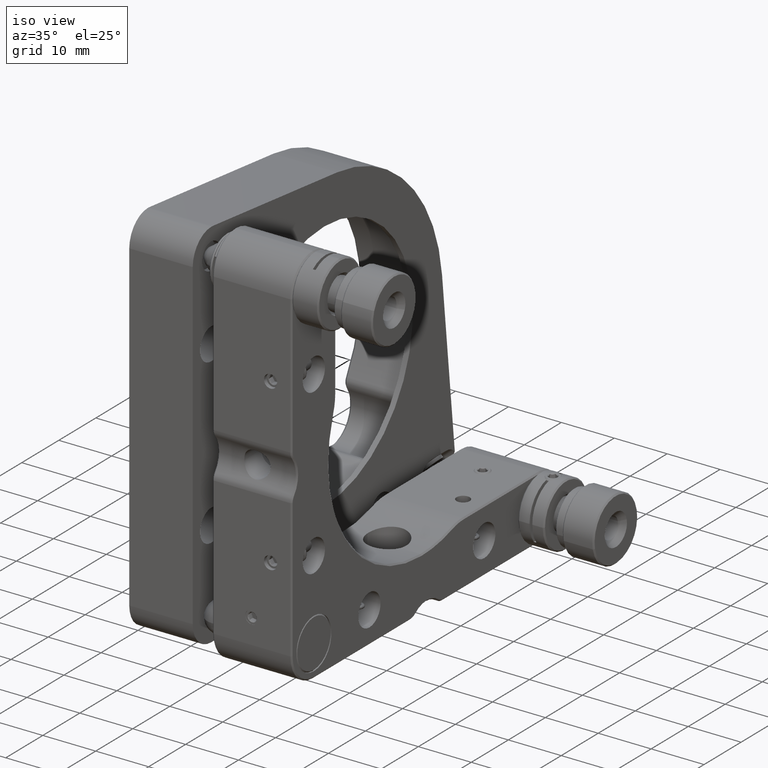
[diagram: clean part render]
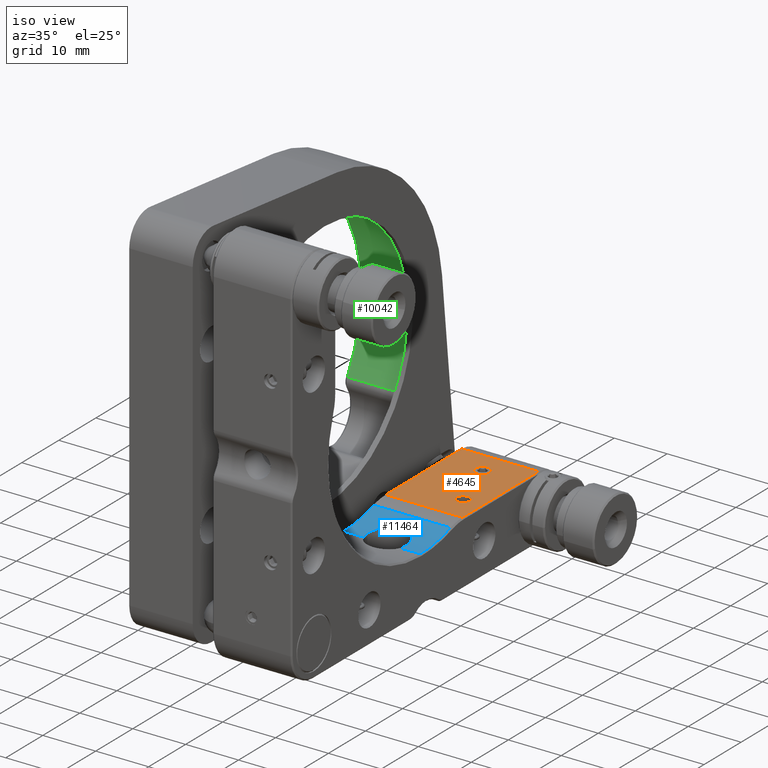
[diagram: same view with three faces highlighted in distinct colors, each labeled with its STEP entity id]
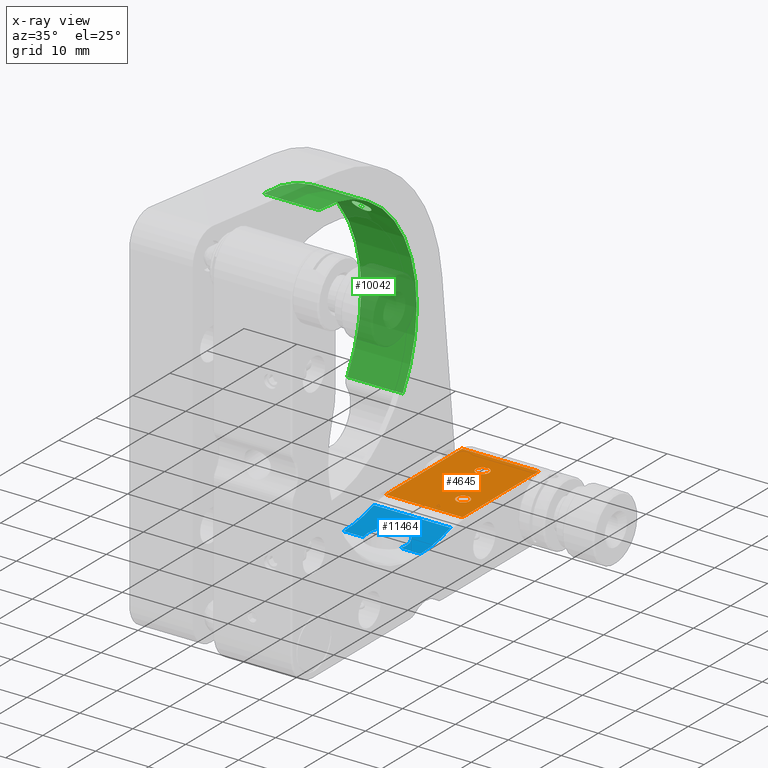
[diagram: x-ray of the same camera — body ghosted, the three highlighted faces saturated]
A machine part, iso view with three faces highlighted in distinct colors.
The next image is the same camera in x-ray (body ghosted, the three faces saturated) — at least one of them is partly hidden behind the body in this view.
Their STEP definitions:

[orange] entity #4645 — the highlighted planar face has unit normal (0, 0, -1).
#412 = CARTESIAN_POINT ( 'NONE',  ( 7.249999999999985789, 30.49999999999999289, -24.50000000000000000 ) ) ;
#606 = EDGE_CURVE ( 'NONE', #11879, #11131, #8048, .T. ) ;
#732 = CARTESIAN_POINT ( 'NONE',  ( -7.249999999999985789, 30.49999999999999289, -24.50000000000000000 ) ) ;
#930 = CARTESIAN_POINT ( 'NONE',  ( -7.500000000000000000, 9.974972527439348369, -24.50000000000000711 ) ) ;
#1131 = CARTESIAN_POINT ( 'NONE',  ( 7.249999999999985789, 30.49999999999999289, -24.50000000000000000 ) ) ;
#1213 = CARTESIAN_POINT ( 'NONE',  ( 0.0000000000000000000, 25.74999999999999645, -24.50000000000001066 ) ) ;
#1419 = EDGE_CURVE ( 'NONE', #14756, #14816, #10387, .T. ) ;
#1962 = FACE_BOUND ( 'NONE', #14344, .T. ) ;
#2209 = DIRECTION ( 'NONE',  ( 1.000000000000000000, -0.0000000000000000000, 0.0000000000000000000 ) ) ;
#2407 = AXIS2_PLACEMENT_3D ( 'NONE', #17346, #5649, #17639 ) ;
#2492 = ORIENTED_EDGE ( 'NONE', *, *, #1419, .T. ) ;
#2556 = ORIENTED_EDGE ( 'NONE', *, *, #16150, .T. ) ;
#2637 = CARTESIAN_POINT ( 'NONE',  ( 1.249999999999988898, 25.74999999999999645, -24.50000000000001066 ) ) ;
#3289 = CARTESIAN_POINT ( 'NONE',  ( 3.499999999999999556, 15.49999999999999112, -24.50000000000000711 ) ) ;
#3484 = ORIENTED_EDGE ( 'NONE', *, *, #10596, .T. ) ;
#3590 = LINE ( 'NONE', #930, #10174 ) ;
#3919 = EDGE_LOOP ( 'NONE', ( #3484, #8219, #2556, #10214 ) ) ;
#4506 = CARTESIAN_POINT ( 'NONE',  ( -7.500000000000000000, 30.49999999999999289, -24.50000000000000000 ) ) ;
#4535 = FACE_BOUND ( 'NONE', #7810, .T. ) ;
#4645 = ADVANCED_FACE ( 'NONE', ( #1962, #4535, #13873 ), #4925, .F. ) ;
#4803 = DIRECTION ( 'NONE',  ( 0.0000000000000000000, 2.448429006113450357E-16, -1.000000000000000000 ) ) ;
#4925 = PLANE ( 'NONE',  #9288 ) ;
#4933 = AXIS2_PLACEMENT_3D ( 'NONE', #12931, #5655, #14703 ) ;
#5376 = EDGE_CURVE ( 'NONE', #10541, #11615, #14725, .T. ) ;
#5377 = DIRECTION ( 'NONE',  ( -0.0000000000000000000, -0.0000000000000000000, 1.000000000000000000 ) ) ;
#5649 = DIRECTION ( 'NONE',  ( -0.0000000000000000000, -0.0000000000000000000, 1.000000000000000000 ) ) ;
#5655 = DIRECTION ( 'NONE',  ( 0.0000000000000000000, 2.448429006113450357E-16, -1.000000000000000000 ) ) ;
#5893 = VECTOR ( 'NONE', #16810, 1000.000000000000000 ) ;
#6009 = EDGE_CURVE ( 'NONE', #14816, #14756, #19050, .T. ) ;
#6851 = DIRECTION ( 'NONE',  ( 0.0000000000000000000, -1.000000000000000000, -2.448429006113450357E-16 ) ) ;
#7434 = VECTOR ( 'NONE', #17761, 1000.000000000000000 ) ;
#7810 = EDGE_LOOP ( 'NONE', ( #18787, #7943 ) ) ;
#7943 = ORIENTED_EDGE ( 'NONE', *, *, #13231, .F. ) ;
#8048 = LINE ( 'NONE', #17267, #11579 ) ;
#8219 = ORIENTED_EDGE ( 'NONE', *, *, #606, .T. ) ;
#9288 = AXIS2_PLACEMENT_3D ( 'NONE', #16923, #13579, #9454 ) ;
#9454 = DIRECTION ( 'NONE',  ( 0.0000000000000000000, 1.000000000000000000, 2.448429006113450357E-16 ) ) ;
#9983 = VERTEX_POINT ( 'NONE', #15550 ) ;
#10174 = VECTOR ( 'NONE', #2209, 1000.000000000000000 ) ;
#10214 = ORIENTED_EDGE ( 'NONE', *, *, #5376, .T. ) ;
#10387 = CIRCLE ( 'NONE', #16067, 1.249999999999988898 ) ;
#10541 = VERTEX_POINT ( 'NONE', #12065 ) ;
#10545 = CARTESIAN_POINT ( 'NONE',  ( -7.249999999999985789, 9.974972527439348369, -24.50000000000000711 ) ) ;
#10596 = EDGE_CURVE ( 'NONE', #11615, #11879, #14936, .T. ) ;
#10852 = CARTESIAN_POINT ( 'NONE',  ( 3.499999999999999556, 16.74999999999997868, -24.50000000000000711 ) ) ;
#10902 = CIRCLE ( 'NONE', #2407, 1.249999999999988898 ) ;
#11131 = VERTEX_POINT ( 'NONE', #10545 ) ;
#11163 = ORIENTED_EDGE ( 'NONE', *, *, #6009, .T. ) ;
#11579 = VECTOR ( 'NONE', #6851, 1000.000000000000000 ) ;
#11615 = VERTEX_POINT ( 'NONE', #412 ) ;
#11879 = VERTEX_POINT ( 'NONE', #732 ) ;
#12065 = CARTESIAN_POINT ( 'NONE',  ( 7.249999999999985789, 9.974972527439348369, -24.50000000000000711 ) ) ;
#12837 = DIRECTION ( 'NONE',  ( 1.000000000000000000, 0.0000000000000000000, 0.0000000000000000000 ) ) ;
#12931 = CARTESIAN_POINT ( 'NONE',  ( 3.499999999999999556, 15.49999999999999112, -24.50000000000000711 ) ) ;
#13231 = EDGE_CURVE ( 'NONE', #9983, #15423, #16459, .T. ) ;
#13579 = DIRECTION ( 'NONE',  ( 0.0000000000000000000, 2.448429006113450357E-16, -1.000000000000000000 ) ) ;
#13873 = FACE_OUTER_BOUND ( 'NONE', #3919, .T. ) ;
#14344 = EDGE_LOOP ( 'NONE', ( #2492, #11163 ) ) ;
#14497 = CARTESIAN_POINT ( 'NONE',  ( 3.499999999999999556, 14.25000000000000178, -24.50000000000000711 ) ) ;
#14703 = DIRECTION ( 'NONE',  ( 0.0000000000000000000, 1.000000000000000000, 0.0000000000000000000 ) ) ;
#14725 = LINE ( 'NONE', #1131, #7434 ) ;
#14756 = VERTEX_POINT ( 'NONE', #10852 ) ;
#14816 = VERTEX_POINT ( 'NONE', #14497 ) ;
#14936 = LINE ( 'NONE', #4506, #5893 ) ;
#15423 = VERTEX_POINT ( 'NONE', #2637 ) ;
#15550 = CARTESIAN_POINT ( 'NONE',  ( -1.249999999999988898, 25.74999999999999645, -24.50000000000001066 ) ) ;
#16067 = AXIS2_PLACEMENT_3D ( 'NONE', #3289, #4803, #18173 ) ;
#16150 = EDGE_CURVE ( 'NONE', #11131, #10541, #3590, .T. ) ;
#16459 = CIRCLE ( 'NONE', #17699, 1.249999999999988898 ) ;
#16810 = DIRECTION ( 'NONE',  ( -1.000000000000000000, -0.0000000000000000000, -0.0000000000000000000 ) ) ;
#16923 = CARTESIAN_POINT ( 'NONE',  ( -7.500000000000000000, 36.49999999999999289, -24.50000000000000000 ) ) ;
#17267 = CARTESIAN_POINT ( 'NONE',  ( -7.249999999999985789, 36.49999999999999289, -24.50000000000000000 ) ) ;
#17346 = CARTESIAN_POINT ( 'NONE',  ( 0.0000000000000000000, 25.74999999999999645, -24.50000000000001066 ) ) ;
#17639 = DIRECTION ( 'NONE',  ( 1.000000000000000000, 0.0000000000000000000, 0.0000000000000000000 ) ) ;
#17699 = AXIS2_PLACEMENT_3D ( 'NONE', #1213, #5377, #12837 ) ;
#17761 = DIRECTION ( 'NONE',  ( 0.0000000000000000000, 1.000000000000000000, 2.448429006113450357E-16 ) ) ;
#18014 = EDGE_CURVE ( 'NONE', #15423, #9983, #10902, .T. ) ;
#18173 = DIRECTION ( 'NONE',  ( 0.0000000000000000000, 1.000000000000000000, 0.0000000000000000000 ) ) ;
#18787 = ORIENTED_EDGE ( 'NONE', *, *, #18014, .F. ) ;
#19050 = CIRCLE ( 'NONE', #4933, 1.249999999999988898 ) ;

[blue] entity #11464 — the highlighted cylindrical surface (partial cylindrical patch) has radius 25 mm, axis along (1, 0, 0).
#228 = CARTESIAN_POINT ( 'NONE',  ( -7.249999999999985789, -1.400000000000005240, -26.40000000000000568 ) ) ;
#662 = CARTESIAN_POINT ( 'NONE',  ( 3.750000000000000000, 0.2483426439134024388, -26.34684017296307346 ) ) ;
#756 = CARTESIAN_POINT ( 'NONE',  ( -1.215030052454873832, 3.556230744233517704, -25.90398107816129425 ) ) ;
#862 = CARTESIAN_POINT ( 'NONE',  ( -0.2513946556965668266, 3.749812296599514205, -25.86383930102086737 ) ) ;
#882 = CARTESIAN_POINT ( 'NONE',  ( 3.568340905513236461, -1.177660415403359417, -26.40000000000001634 ) ) ;
#1513 = CARTESIAN_POINT ( 'NONE',  ( -7.249999999999985789, 6.724980376742389687, -25.04285714285715159 ) ) ;
#1752 = CARTESIAN_POINT ( 'NONE',  ( 7.249999999999985789, 6.724980376742389687, -25.04285714285715159 ) ) ;
#2049 = CARTESIAN_POINT ( 'NONE',  ( 3.628775180462768812, 0.9774412803408542016, -26.28788383276828355 ) ) ;
#2147 = CARTESIAN_POINT ( 'NONE',  ( 1.664291155159158153, 3.369428703164926375, -25.94102226257084709 ) ) ;
#2235 = CARTESIAN_POINT ( 'NONE',  ( 2.824293897920668872, 2.478971471692549056, -26.09785630135718293 ) ) ;
#2253 = CARTESIAN_POINT ( 'NONE',  ( 3.726985352242984106, -0.4782103465288435329, -26.38409315392212662 ) ) ;
#2330 = CARTESIAN_POINT ( 'NONE',  ( -3.726193995745023635, 0.4888753012134905984, -26.32972685004501656 ) ) ;
#2653 = EDGE_CURVE ( 'NONE', #11591, #12548, #9428, .T. ) ;
#2765 = DIRECTION ( 'NONE',  ( -1.000000000000000000, 0.0000000000000000000, 0.0000000000000000000 ) ) ;
#2946 = CARTESIAN_POINT ( 'NONE',  ( 7.249999999999985789, -1.400000000000005240, -1.400000000000005462 ) ) ;
#3124 = AXIS2_PLACEMENT_3D ( 'NONE', #15382, #9677, #6431 ) ;
#3162 = VECTOR ( 'NONE', #14813, 1000.000000000000000 ) ;
#3518 = CARTESIAN_POINT ( 'NONE',  ( 3.556333213172437446, 1.214265096177193692, -26.26396926648164865 ) ) ;
#3528 = CARTESIAN_POINT ( 'NONE',  ( 3.478864757359797721, -1.400000000000007239, -26.40000000000000568 ) ) ;
#3616 = CARTESIAN_POINT ( 'NONE',  ( -1.884434697420882099, 3.251340632257411656, -25.96387980000571716 ) ) ;
#3682 = ORIENTED_EDGE ( 'NONE', *, *, #12036, .T. ) ;
#3719 = CARTESIAN_POINT ( 'NONE',  ( 3.253653173716641422, 1.880707690012587419, -26.18466857758205535 ) ) ;
#3811 = CARTESIAN_POINT ( 'NONE',  ( 0.2457632580690238544, 3.750185589224221072, -25.86376071729218395 ) ) ;
#4265 = DIRECTION ( 'NONE',  ( 0.0000000000000000000, 0.0000000000000000000, -1.000000000000000000 ) ) ;
#4418 = CARTESIAN_POINT ( 'NONE',  ( -3.749999999999999556, -0.2381377389934264677, -26.37412589200867430 ) ) ;
#4769 = VERTEX_POINT ( 'NONE', #3528 ) ;
#5113 = CARTESIAN_POINT ( 'NONE',  ( -1.669410518272704147, 3.366919015373051938, -25.94151166839254330 ) ) ;
#5214 = CARTESIAN_POINT ( 'NONE',  ( -3.750000000000000000, 0.2451488836666787796, -26.34701930463590358 ) ) ;
#5521 = CARTESIAN_POINT ( 'NONE',  ( 3.749999999999999112, -7.806255641895631925E-15, -26.36076921891631741 ) ) ;
#5579 = LINE ( 'NONE', #11946, #3162 ) ;
#5738 = CARTESIAN_POINT ( 'NONE',  ( -7.500000000000000000, -1.400000000000005240, -1.400000000000005462 ) ) ;
#5832 = ORIENTED_EDGE ( 'NONE', *, *, #2653, .T. ) ;
#5978 = CARTESIAN_POINT ( 'NONE',  ( -3.749999999999999112, -7.471029728745358821E-15, -26.36076921891631386 ) ) ;
#6169 = CARTESIAN_POINT ( 'NONE',  ( -3.478864757360177418, -1.400000000000213296, -26.40000000000006253 ) ) ;
#6418 = VERTEX_POINT ( 'NONE', #17171 ) ;
#6431 = DIRECTION ( 'NONE',  ( 0.0000000000000000000, 5.325601071248797780E-15, -1.000000000000000000 ) ) ;
#6530 = AXIS2_PLACEMENT_3D ( 'NONE', #5738, #17730, #4265 ) ;
#6687 = CARTESIAN_POINT ( 'NONE',  ( -2.483092227932784279, 2.820695790691298388, -26.04176134363767758 ) ) ;
#6740 = VERTEX_POINT ( 'NONE', #1513 ) ;
#6779 = CARTESIAN_POINT ( 'NONE',  ( 0.9711761757152294061, 3.630348728231137745, -25.88873153683171680 ) ) ;
#6885 = CARTESIAN_POINT ( 'NONE',  ( 2.979326867691137082, 2.290618214710292477, -26.12695243334972162 ) ) ;
#6906 = CARTESIAN_POINT ( 'NONE',  ( 3.478864757359797721, -1.400000000000007239, -26.40000000000000568 ) ) ;
#8074 = CARTESIAN_POINT ( 'NONE',  ( 1.210242296302889375, 3.557840415068134643, -25.90365365134940490 ) ) ;
#8177 = CARTESIAN_POINT ( 'NONE',  ( 2.287464351129501861, 2.981634681827431521, -26.01342052185443166 ) ) ;
#8375 = CARTESIAN_POINT ( 'NONE',  ( -3.558040884704261053, 1.209273412212840348, -26.26449562839454899 ) ) ;
#8474 = B_SPLINE_CURVE_WITH_KNOTS ( 'NONE', 3,
 ( #5521, #11620, #2253, #17221, #882, #6906 ),
 .UNSPECIFIED., .F., .F.,
 ( 4, 2, 4 ),
 ( 1.421297056307178559E-19, 0.0007138061323531358186, 0.001427612264706271637 ),
 .UNSPECIFIED. ) ;
#8527 = CARTESIAN_POINT ( 'NONE',  ( -3.749999999999999112, -7.471029728745358821E-15, -26.36076921891631386 ) ) ;
#8993 = DIRECTION ( 'NONE',  ( 0.0000000000000000000, 0.0000000000000000000, -1.000000000000000000 ) ) ;
#9182 = DIRECTION ( 'NONE',  ( 1.000000000000000000, 0.0000000000000000000, 0.0000000000000000000 ) ) ;
#9428 = LINE ( 'NONE', #13753, #12343 ) ;
#9635 = CARTESIAN_POINT ( 'NONE',  ( -2.290757374523161083, 2.979050299487994380, -26.01387980349647222 ) ) ;
#9677 = DIRECTION ( 'NONE',  ( -1.000000000000000000, -0.0000000000000000000, -0.0000000000000000000 ) ) ;
#9820 = CARTESIAN_POINT ( 'NONE',  ( 1.879674961690864787, 3.254145136891858137, -25.96334922838055803 ) ) ;
#10034 = CARTESIAN_POINT ( 'NONE',  ( 7.249999999999985789, -1.400000000000005240, -26.40000000000000568 ) ) ;
#10126 = VERTEX_POINT ( 'NONE', #10034 ) ;
#10253 = LINE ( 'NONE', #11552, #12153 ) ;
#10540 = EDGE_CURVE ( 'NONE', #12548, #14855, #15956, .T. ) ;
#10605 = DIRECTION ( 'NONE',  ( 1.000000000000000000, -0.0000000000000000000, -0.0000000000000000000 ) ) ;
#10733 = AXIS2_PLACEMENT_3D ( 'NONE', #2946, #9182, #8993 ) ;
#10924 = ORIENTED_EDGE ( 'NONE', *, *, #19134, .T. ) ;
#10996 = CIRCLE ( 'NONE', #3124, 25.00000000000000000 ) ;
#11194 = CARTESIAN_POINT ( 'NONE',  ( 3.369161030814397773, 1.664541857493905930, -26.21249549886714192 ) ) ;
#11287 = ORIENTED_EDGE ( 'NONE', *, *, #15511, .T. ) ;
#11464 = ADVANCED_FACE ( 'NONE', ( #16084 ), #17635, .F. ) ;
#11484 = EDGE_CURVE ( 'NONE', #15766, #6740, #10253, .T. ) ;
#11552 = CARTESIAN_POINT ( 'NONE',  ( -7.500000000000000000, 6.724980376742389687, -25.04285714285715159 ) ) ;
#11591 = VERTEX_POINT ( 'NONE', #228 ) ;
#11620 = CARTESIAN_POINT ( 'NONE',  ( 3.750000000000000000, -0.2409880594898241857, -26.37428576082761822 ) ) ;
#11946 = CARTESIAN_POINT ( 'NONE',  ( -7.500000000000000000, -1.400000000000005240, -26.40000000000000568 ) ) ;
#12005 = ORIENTED_EDGE ( 'NONE', *, *, #11484, .T. ) ;
#12036 = EDGE_CURVE ( 'NONE', #14855, #6418, #12172, .T. ) ;
#12153 = VECTOR ( 'NONE', #2765, 1000.000000000000000 ) ;
#12162 = CARTESIAN_POINT ( 'NONE',  ( -3.568207256335308220, -1.177992520699760348, -26.40000000000000213 ) ) ;
#12172 = B_SPLINE_CURVE_WITH_KNOTS ( 'NONE', 3,
 ( #17097, #5214, #2330, #12771, #8375, #17292, #12873, #18580, #15535, #6687, #9635, #3616, #5113, #756, #14357, #17004, #862, #3811, #15641, #6779, #8074, #2147, #9820, #8177, #14161, #2235, #6885, #3719, #11194, #3518, #2049, #15741, #662, #17200 ),
 .UNSPECIFIED., .F., .F.,
 ( 4, 2, 2, 2, 2, 2, 2, 2, 2, 2, 2, 2, 2, 2, 2, 2, 4 ),
 ( 0.01172942150683420164, 0.01246501190299519751, 0.01320060229915619165, 0.01393619269531718753, 0.01467178309147818167, 0.01540737348763917755, 0.01614296388380017169, 0.01687855427996116583, 0.01761414467612215998, 0.01834973507228315412, 0.01908532546844414826, 0.01982091586460514587, 0.02055650626076614002, 0.02129209665692713416, 0.02202768705308812830, 0.02276327744924912591, 0.02349886784541012005 ),
 .UNSPECIFIED. ) ;
#12343 = VECTOR ( 'NONE', #10605, 1000.000000000000000 ) ;
#12548 = VERTEX_POINT ( 'NONE', #13949 ) ;
#12573 = ORIENTED_EDGE ( 'NONE', *, *, #16448, .T. ) ;
#12594 = ORIENTED_EDGE ( 'NONE', *, *, #13667, .T. ) ;
#12771 = CARTESIAN_POINT ( 'NONE',  ( -3.629866805750873837, 0.9734411777661710063, -26.28826847526909916 ) ) ;
#12873 = CARTESIAN_POINT ( 'NONE',  ( -3.255027797494942643, 1.878193494980048728, -26.18499524583519644 ) ) ;
#13237 = EDGE_LOOP ( 'NONE', ( #12594, #5832, #15002, #3682, #11287, #10924, #12573, #12005 ) ) ;
#13667 = EDGE_CURVE ( 'NONE', #6740, #11591, #10996, .T. ) ;
#13753 = CARTESIAN_POINT ( 'NONE',  ( -7.500000000000000000, -1.400000000000005240, -26.40000000000000568 ) ) ;
#13949 = CARTESIAN_POINT ( 'NONE',  ( -3.478864757360177418, -1.400000000000213296, -26.40000000000006253 ) ) ;
#14161 = CARTESIAN_POINT ( 'NONE',  ( 2.479552391628050412, 2.823783900455036466, -26.04122917232316325 ) ) ;
#14357 = CARTESIAN_POINT ( 'NONE',  ( -0.9766184884317432591, 3.628873252564901453, -25.88903524990750071 ) ) ;
#14813 = DIRECTION ( 'NONE',  ( 1.000000000000000000, -0.0000000000000000000, -0.0000000000000000000 ) ) ;
#14855 = VERTEX_POINT ( 'NONE', #8527 ) ;
#15002 = ORIENTED_EDGE ( 'NONE', *, *, #10540, .T. ) ;
#15382 = CARTESIAN_POINT ( 'NONE',  ( -7.249999999999985789, -1.400000000000005240, -1.400000000000005462 ) ) ;
#15511 = EDGE_CURVE ( 'NONE', #6418, #4769, #8474, .T. ) ;
#15535 = CARTESIAN_POINT ( 'NONE',  ( -2.827771031062754847, 2.475031868870802843, -26.09847774842795687 ) ) ;
#15641 = CARTESIAN_POINT ( 'NONE',  ( 0.4902077128166106301, 3.725897402122258395, -25.86890999684189296 ) ) ;
#15741 = CARTESIAN_POINT ( 'NONE',  ( 3.725572881812821091, 0.4934647597933248253, -26.32937584293393840 ) ) ;
#15766 = VERTEX_POINT ( 'NONE', #1752 ) ;
#15956 = B_SPLINE_CURVE_WITH_KNOTS ( 'NONE', 3,
 ( #6169, #12162, #17877, #18797, #4418, #5978 ),
 .UNSPECIFIED., .F., .F.,
 ( 4, 2, 4 ),
 ( 0.01030031580464203789, 0.01101486865573812063, 0.01172942150683420164 ),
 .UNSPECIFIED. ) ;
#16084 = FACE_OUTER_BOUND ( 'NONE', #13237, .T. ) ;
#16092 = CIRCLE ( 'NONE', #10733, 25.00000000000000000 ) ;
#16448 = EDGE_CURVE ( 'NONE', #10126, #15766, #16092, .T. ) ;
#17004 = CARTESIAN_POINT ( 'NONE',  ( -0.4962409881125962041, 3.725083842928197164, -25.86908108745669921 ) ) ;
#17097 = CARTESIAN_POINT ( 'NONE',  ( -3.749999999999999112, -7.471029728745358821E-15, -26.36076921891631386 ) ) ;
#17171 = CARTESIAN_POINT ( 'NONE',  ( 3.749999999999999112, -7.806255641895631925E-15, -26.36076921891631741 ) ) ;
#17200 = CARTESIAN_POINT ( 'NONE',  ( 3.749999999999999112, -7.806255641895631925E-15, -26.36076921891631741 ) ) ;
#17221 = CARTESIAN_POINT ( 'NONE',  ( 3.636664978064824805, -0.9453955725926417308, -26.39695864907742617 ) ) ;
#17292 = CARTESIAN_POINT ( 'NONE',  ( -3.371407644823595895, 1.660002293714373023, -26.21305778328410341 ) ) ;
#17635 = CYLINDRICAL_SURFACE ( 'NONE', #6530, 25.00000000000000000 ) ;
#17730 = DIRECTION ( 'NONE',  ( 1.000000000000000000, -0.0000000000000000000, -0.0000000000000000000 ) ) ;
#17877 = CARTESIAN_POINT ( 'NONE',  ( -3.635643576547281874, -0.9496151825441696559, -26.39704563153794581 ) ) ;
#18580 = CARTESIAN_POINT ( 'NONE',  ( -2.982261845232191622, 2.286685604433286834, -26.12753305893386724 ) ) ;
#18797 = CARTESIAN_POINT ( 'NONE',  ( -3.726810001908763326, -0.4801670753817877668, -26.38417587553716359 ) ) ;
#19134 = EDGE_CURVE ( 'NONE', #4769, #10126, #5579, .T. ) ;

[green] entity #10042 — the highlighted cylindrical surface (partial cylindrical patch) has radius 26.4 mm, axis along (-1, -0, -0).
#44 = VERTEX_POINT ( 'NONE', #13278 ) ;
#113 = EDGE_CURVE ( 'NONE', #13446, #10865, #13952, .T. ) ;
#433 = ORIENTED_EDGE ( 'NONE', *, *, #113, .T. ) ;
#477 = CARTESIAN_POINT ( 'NONE',  ( 4.999999999999999112, 0.0000000000000000000, 0.0000000000000000000 ) ) ;
#522 = CARTESIAN_POINT ( 'NONE',  ( 0.4346632809229713512, 19.76885647954251368, 17.49740367622231219 ) ) ;
#716 = CARTESIAN_POINT ( 'NONE',  ( 1.242017605632075528, 17.87989778832937660, 19.42356925424137160 ) ) ;
#817 = CARTESIAN_POINT ( 'NONE',  ( 1.483356722187573196, 19.17725906234933220, 18.14394513533454045 ) ) ;
#1068 = CARTESIAN_POINT ( 'NONE',  ( -0.8266070233427192937, 19.65281401785278703, 17.62754936643693071 ) ) ;
#1655 = CARTESIAN_POINT ( 'NONE',  ( -0.7313740746966365114, 17.58952333586648464, 19.68680748850214712 ) ) ;
#1914 = CARTESIAN_POINT ( 'NONE',  ( 1.432732170304266583, 19.24228842858805777, 18.07491030855460323 ) ) ;
#1951 = CARTESIAN_POINT ( 'NONE',  ( -0.1077007174158798042, 17.46439696559195198, 19.79784934350756487 ) ) ;
#2006 = CARTESIAN_POINT ( 'NONE',  ( 0.8315607183128460589, 19.65898598761675942, 17.62075741437116605 ) ) ;
#2380 = CARTESIAN_POINT ( 'NONE',  ( 2.020667264748523228E-16, 17.46439696559195554, 19.79784934350755421 ) ) ;
#2866 = DIRECTION ( 'NONE',  ( 0.0000000000000000000, 0.0000000000000000000, 1.000000000000000000 ) ) ;
#3023 = CARTESIAN_POINT ( 'NONE',  ( -1.312176611199728171, 17.94274009529818770, 19.36559005472122408 ) ) ;
#3310 = CARTESIAN_POINT ( 'NONE',  ( -1.597158909187927467, 18.36263846433725888, 18.96799169971313859 ) ) ;
#3330 = FACE_OUTER_BOUND ( 'NONE', #16704, .T. ) ;
#3383 = CARTESIAN_POINT ( 'NONE',  ( 0.8295691365421993257, 17.61990012815754980, 19.65975321645217733 ) ) ;
#3477 = CARTESIAN_POINT ( 'NONE',  ( 1.565225430041968568, 18.28695635495128613, 19.04093452968518108 ) ) ;
#4302 = B_SPLINE_CURVE_WITH_KNOTS ( 'NONE', 3,
 ( #10967, #6449, #5078, #3383, #12539, #716, #9590, #15794, #6840, #3477, #6646, #18630, #5168, #16872, #15702, #817, #1914, #8236, #15492, #14220, #2006, #522, #18541, #6739 ),
 .UNSPECIFIED., .F., .F.,
 ( 4, 2, 2, 2, 2, 2, 2, 2, 2, 2, 2, 4 ),
 ( 0.005159909450215039578, 0.005804750332739247627, 0.006449591215263455676, 0.006772011656525562737, 0.007094432097787669797, 0.007416852539049776857, 0.007739272980311883918, 0.008384113862836091099, 0.008706534304098196425, 0.009028954745360303485, 0.009673795627884521076, 0.01031863651040873867 ),
 .UNSPECIFIED. ) ;
#4408 = CARTESIAN_POINT ( 'NONE',  ( 4.999999999999999112, 0.0000000000000000000, 26.40000000000000213 ) ) ;
#4628 = CARTESIAN_POINT ( 'NONE',  ( -0.4285660074007015541, 17.50417737990858669, 19.76269771483466187 ) ) ;
#4732 = CARTESIAN_POINT ( 'NONE',  ( -0.8278237955214661214, 17.62809275739235204, 19.65232619807567715 ) ) ;
#4805 = ORIENTED_EDGE ( 'NONE', *, *, #17312, .F. ) ;
#4818 = CARTESIAN_POINT ( 'NONE',  ( -1.606592232151060395, 18.97186987933006463, 18.35940095459249477 ) ) ;
#5019 = CARTESIAN_POINT ( 'NONE',  ( -1.319112090222713141, 19.37135488647909298, 17.93694032853788300 ) ) ;
#5078 = CARTESIAN_POINT ( 'NONE',  ( 0.4324253012866891011, 17.49694898821503841, 19.76925777974098963 ) ) ;
#5168 = CARTESIAN_POINT ( 'NONE',  ( 1.649910803974740325, 18.58968336206811500, 18.74554680069489265 ) ) ;
#5421 = ORIENTED_EDGE ( 'NONE', *, *, #6122, .T. ) ;
#5801 = EDGE_CURVE ( 'NONE', #10865, #13446, #4302, .T. ) ;
#5997 = CARTESIAN_POINT ( 'NONE',  ( -0.4272038967824017819, 19.76292698469610443, 17.50391837005648910 ) ) ;
#6122 = EDGE_CURVE ( 'NONE', #44, #14752, #9016, .T. ) ;
#6193 = CARTESIAN_POINT ( 'NONE',  ( -0.5314349935399810265, 17.52757807524964662, 19.74197880376644321 ) ) ;
#6403 = DIRECTION ( 'NONE',  ( 0.0000000000000000000, 0.0000000000000000000, 1.000000000000000000 ) ) ;
#6449 = CARTESIAN_POINT ( 'NONE',  ( 0.2153520757277719855, 17.46439696559195198, 19.79784934350756131 ) ) ;
#6646 = CARTESIAN_POINT ( 'NONE',  ( 1.597080510533811504, 18.36249426648554106, 18.96812922886493524 ) ) ;
#6739 = CARTESIAN_POINT ( 'NONE',  ( 0.0000000000000000000, 19.79784934350755421, 17.46439696559195909 ) ) ;
#6840 = CARTESIAN_POINT ( 'NONE',  ( 1.482341799289383477, 18.14247146063404514, 19.17865192842631217 ) ) ;
#7172 = AXIS2_PLACEMENT_3D ( 'NONE', #11078, #15720, #15615 ) ;
#7495 = CARTESIAN_POINT ( 'NONE',  ( -0.2162680750786966921, 19.79075880621588368, 17.47244422461318436 ) ) ;
#7596 = CARTESIAN_POINT ( 'NONE',  ( -1.006520748697465661, 17.71698229409997438, 19.57222822392350992 ) ) ;
#7785 = CARTESIAN_POINT ( 'NONE',  ( -1.005959774667238182, 19.57253668165526861, 17.71664198802190882 ) ) ;
#7897 = DIRECTION ( 'NONE',  ( -1.000000000000000000, -0.0000000000000000000, -0.0000000000000000000 ) ) ;
#7973 = CARTESIAN_POINT ( 'NONE',  ( -1.090855098200784301, 19.52567501923490667, 17.76833756053412117 ) ) ;
#8119 = CARTESIAN_POINT ( 'NONE',  ( -5.500000000000018652, 22.64631635552511568, -13.56850601670928036 ) ) ;
#8236 = CARTESIAN_POINT ( 'NONE',  ( 1.313227417481399373, 19.36467406126383040, 17.94372996710223944 ) ) ;
#8598 = CARTESIAN_POINT ( 'NONE',  ( -0.7318380243017493791, 19.68665246302149185, 17.58969688237452189 ) ) ;
#8848 = LINE ( 'NONE', #4408, #13743 ) ;
#9016 = CIRCLE ( 'NONE', #9332, 26.40000000000000213 ) ;
#9156 = CARTESIAN_POINT ( 'NONE',  ( 2.020667264748523228E-16, 17.46439696559195554, 19.79784934350755421 ) ) ;
#9332 = AXIS2_PLACEMENT_3D ( 'NONE', #10463, #17839, #2866 ) ;
#9343 = CARTESIAN_POINT ( 'NONE',  ( -1.483316179737571128, 18.14389833759389603, 19.17730271539426923 ) ) ;
#9362 = CYLINDRICAL_SURFACE ( 'NONE', #15055, 26.40000000000000213 ) ;
#9590 = CARTESIAN_POINT ( 'NONE',  ( 1.311712573281658578, 17.94226838630068954, 19.36602841137877817 ) ) ;
#10042 = ADVANCED_FACE ( 'NONE', ( #15356, #3330 ), #9362, .F. ) ;
#10463 = CARTESIAN_POINT ( 'NONE',  ( -5.500000000000018652, 0.0000000000000000000, 0.0000000000000000000 ) ) ;
#10624 = CARTESIAN_POINT ( 'NONE',  ( -0.2170870506654427323, 17.47251123105077752, 19.79069978540524843 ) ) ;
#10803 = CARTESIAN_POINT ( 'NONE',  ( -1.649922897523818044, 18.82027024521837788, 18.51496098647131205 ) ) ;
#10834 = CARTESIAN_POINT ( 'NONE',  ( 4.999999999999999112, 22.64631635552511568, -13.56850601670928036 ) ) ;
#10865 = VERTEX_POINT ( 'NONE', #2380 ) ;
#10967 = CARTESIAN_POINT ( 'NONE',  ( 2.020667264748523228E-16, 17.46439696559195554, 19.79784934350755421 ) ) ;
#11078 = CARTESIAN_POINT ( 'NONE',  ( 4.999999999999999112, 0.0000000000000000000, 0.0000000000000000000 ) ) ;
#11452 = ORIENTED_EDGE ( 'NONE', *, *, #16823, .T. ) ;
#11616 = EDGE_CURVE ( 'NONE', #16489, #44, #8848, .T. ) ;
#11987 = CARTESIAN_POINT ( 'NONE',  ( -0.5320143775743839676, 19.74184579049710564, 17.52772793027771669 ) ) ;
#12280 = CARTESIAN_POINT ( 'NONE',  ( -1.431638973815075877, 18.07354962147769584, 19.24356527192719213 ) ) ;
#12307 = LINE ( 'NONE', #10834, #14218 ) ;
#12374 = CARTESIAN_POINT ( 'NONE',  ( -1.243978761067482841, 17.88144575932778224, 19.42214829290306000 ) ) ;
#12401 = CARTESIAN_POINT ( 'NONE',  ( 4.999999999999999112, 0.0000000000000000000, 26.40000000000000213 ) ) ;
#12510 = DIRECTION ( 'NONE',  ( 1.000000000000000000, 0.0000000000000000000, 0.0000000000000000000 ) ) ;
#12539 = CARTESIAN_POINT ( 'NONE',  ( 1.013695054923610561, 17.71153791544619338, 19.57765498345951016 ) ) ;
#12569 = ORIENTED_EDGE ( 'NONE', *, *, #11616, .T. ) ;
#13081 = CIRCLE ( 'NONE', #7172, 26.40000000000000213 ) ;
#13278 = CARTESIAN_POINT ( 'NONE',  ( -5.500000000000018652, 0.0000000000000000000, 26.40000000000000213 ) ) ;
#13316 = CARTESIAN_POINT ( 'NONE',  ( 0.0000000000000000000, 19.79784934350755421, 17.46439696559195909 ) ) ;
#13446 = VERTEX_POINT ( 'NONE', #13316 ) ;
#13553 = ORIENTED_EDGE ( 'NONE', *, *, #5801, .T. ) ;
#13743 = VECTOR ( 'NONE', #16593, 1000.000000000000000 ) ;
#13952 = B_SPLINE_CURVE_WITH_KNOTS ( 'NONE', 3,
 ( #17898, #14958, #7495, #5997, #11987, #8598, #1068, #7785, #7973, #5019, #18085, #4818, #10803, #16806, #16523, #3310, #15239, #9343, #12280, #3023, #12374, #15340, #7596, #4732, #1655, #6193, #4628, #10624, #1951, #9156 ),
 .UNSPECIFIED., .F., .F.,
 ( 4, 2, 2, 2, 2, 2, 2, 2, 2, 2, 2, 2, 2, 2, 4 ),
 ( 2.482545014649804204E-18, 0.0003224943406384425215, 0.0006449886812768825493, 0.0009674830219153225230, 0.001289977362553762497, 0.001934966043830637023, 0.002579954725107511983, 0.002902449065745953041, 0.003224943406384394532, 0.003547437747022835156, 0.003869932087661276214, 0.004192426428299717706, 0.004514920768938158330, 0.004837415109576598954, 0.005159909450215039578 ),
 .UNSPECIFIED. ) ;
#14218 = VECTOR ( 'NONE', #12510, 1000.000000000000000 ) ;
#14220 = CARTESIAN_POINT ( 'NONE',  ( 1.015413927636023672, 19.57678874949060344, 17.71249834640892118 ) ) ;
#14752 = VERTEX_POINT ( 'NONE', #8119 ) ;
#14958 = CARTESIAN_POINT ( 'NONE',  ( -0.1090479342941677587, 19.79784934350754710, 17.46439696559196975 ) ) ;
#15055 = AXIS2_PLACEMENT_3D ( 'NONE', #477, #7897, #6403 ) ;
#15239 = CARTESIAN_POINT ( 'NONE',  ( -1.565985935293778164, 18.28855952816105201, 19.03939538713666835 ) ) ;
#15340 = CARTESIAN_POINT ( 'NONE',  ( -1.089963683257063609, 17.76767620691441252, 19.52628046919193494 ) ) ;
#15356 = FACE_BOUND ( 'NONE', #16605, .T. ) ;
#15492 = CARTESIAN_POINT ( 'NONE',  ( 1.243614863557284345, 19.42234206381532857, 17.88123157418358744 ) ) ;
#15615 = DIRECTION ( 'NONE',  ( 0.0000000000000000000, 0.0000000000000000000, 1.000000000000000000 ) ) ;
#15702 = CARTESIAN_POINT ( 'NONE',  ( 1.607467371333887618, 18.97014921524447217, 18.36119494001728114 ) ) ;
#15720 = DIRECTION ( 'NONE',  ( -1.000000000000000000, 0.0000000000000000000, 0.0000000000000000000 ) ) ;
#15794 = CARTESIAN_POINT ( 'NONE',  ( 1.431622849415852716, 18.07349570533322947, 19.24361723444105721 ) ) ;
#16489 = VERTEX_POINT ( 'NONE', #12401 ) ;
#16509 = CARTESIAN_POINT ( 'NONE',  ( 4.999999999999999112, 22.64631635552511568, -13.56850601670928036 ) ) ;
#16523 = CARTESIAN_POINT ( 'NONE',  ( -1.639302816217612424, 18.51412369086229859, 18.82016005383047741 ) ) ;
#16593 = DIRECTION ( 'NONE',  ( -1.000000000000000000, -0.0000000000000000000, -0.0000000000000000000 ) ) ;
#16605 = EDGE_LOOP ( 'NONE', ( #433, #13553 ) ) ;
#16704 = EDGE_LOOP ( 'NONE', ( #4805, #12569, #5421, #11452 ) ) ;
#16806 = CARTESIAN_POINT ( 'NONE',  ( -1.650038392960363476, 18.59191929460549630, 18.74332214553432863 ) ) ;
#16823 = EDGE_CURVE ( 'NONE', #14752, #18733, #12307, .T. ) ;
#16872 = CARTESIAN_POINT ( 'NONE',  ( 1.650176751014877263, 18.82064016368440917, 18.51461350569028497 ) ) ;
#17312 = EDGE_CURVE ( 'NONE', #16489, #18733, #13081, .T. ) ;
#17839 = DIRECTION ( 'NONE',  ( -1.000000000000000000, 0.0000000000000000000, 0.0000000000000000000 ) ) ;
#17898 = CARTESIAN_POINT ( 'NONE',  ( 0.0000000000000000000, 19.79784934350755421, 17.46439696559195909 ) ) ;
#18085 = CARTESIAN_POINT ( 'NONE',  ( -1.442030440622491083, 19.24596076856703775, 18.07186886363725620 ) ) ;
#18541 = CARTESIAN_POINT ( 'NONE',  ( 0.2180458920565369607, 19.79784934350754355, 17.46439696559196975 ) ) ;
#18630 = CARTESIAN_POINT ( 'NONE',  ( 1.639153974679149472, 18.51345182134491196, 18.82081889260867058 ) ) ;
#18733 = VERTEX_POINT ( 'NONE', #16509 ) ;